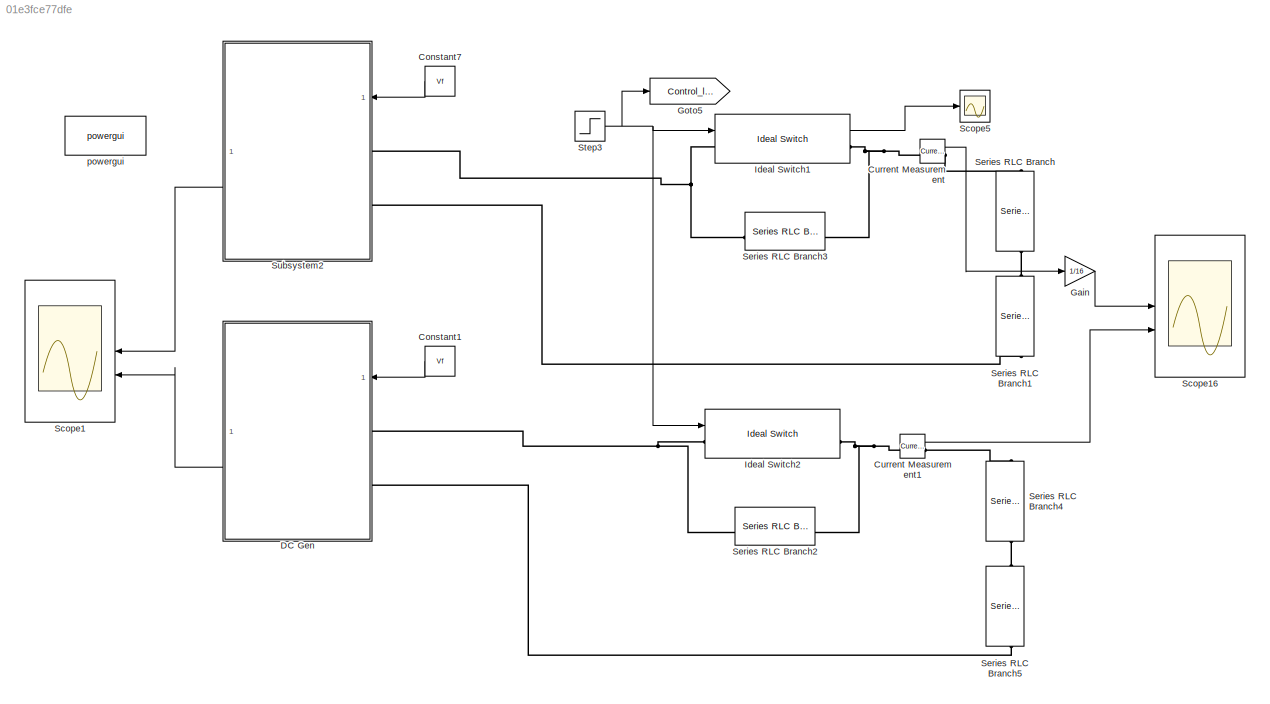
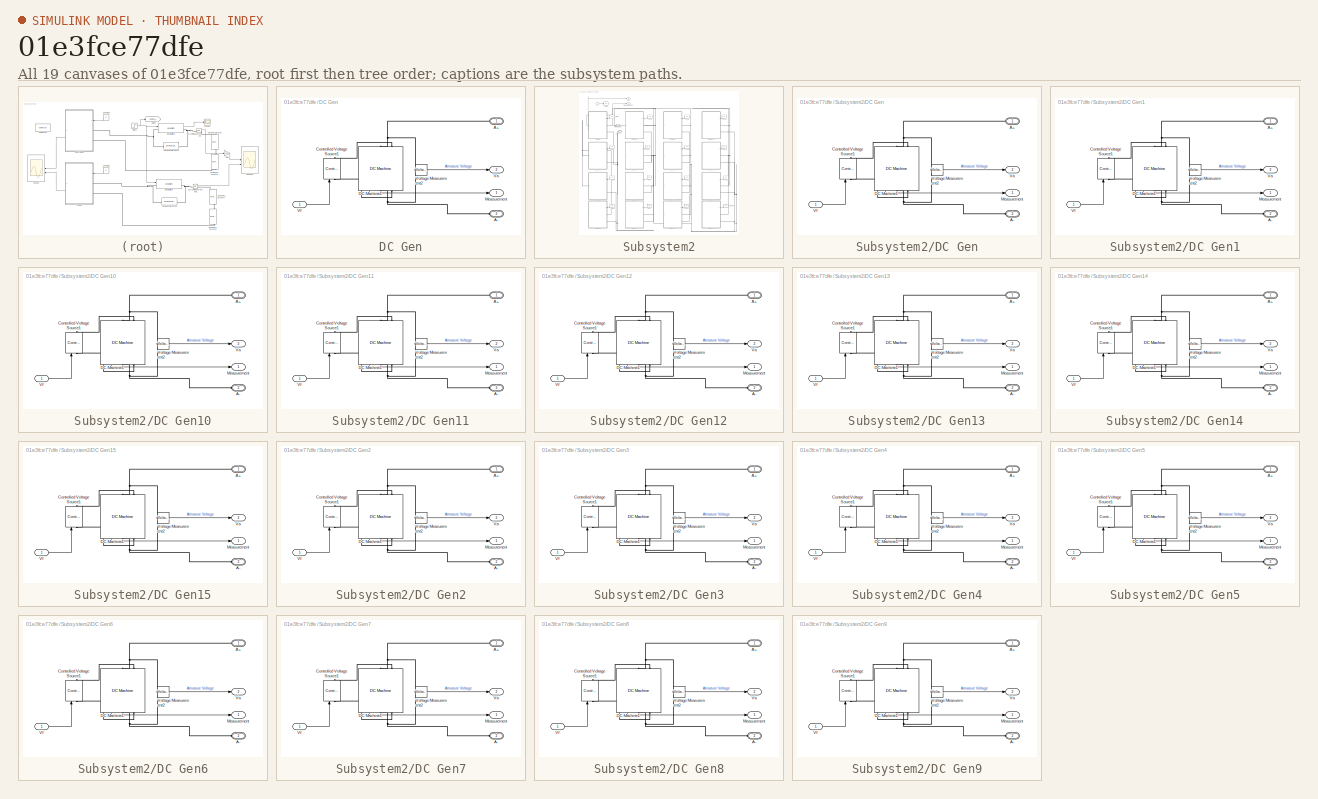
[diagram: thumbnail index - all 19 canvases of the model, root first then tree order]
MODEL slx_01e3fce77dfe
KIND model
CONFIG AbsTol = auto
CONFIG EnableMultiTasking = off
CONFIG FixedStep = auto
CONFIG MaxStep = auto
CONFIG MinStep = auto
CONFIG RelTol = 1e-3
CONFIG SampleTimeConstraint = Unconstrained
CONFIG SolverName = VariableStepAuto
CONFIG StartTime = 0.0
CONFIG StopTime = 10.0
BLOCK [Constant] Constant1
  NameLocation = top
  Value = Vf
BLOCK [Constant] Constant7
  NameLocation = top
  Value = Vf
BLOCK [Reference] Current Measurement  REF=spsCurrentMeasurementLib/Current Measurement
  LibrarySourceBlock = sps_lib/Sensors and Measurements/Current Measurement
  SourceBlock = spsCurrentMeasurementLib/Current Measurement
  SourceType = Current Measurement
  UserDataPersistent = on
BLOCK [Reference] Current Measurement1  REF=spsCurrentMeasurementLib/Current Measurement
  LibrarySourceBlock = sps_lib/Sensors and Measurements/Current Measurement
  SourceBlock = spsCurrentMeasurementLib/Current Measurement
  SourceType = Current Measurement
  UserDataPersistent = on
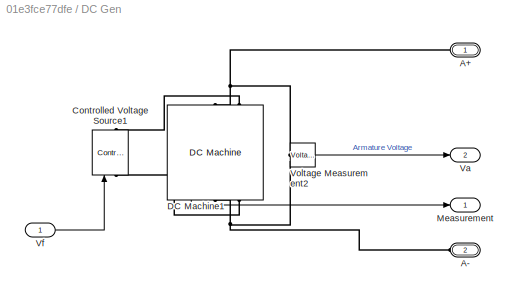
BLOCK [SubSystem] DC Gen
  NameLocation = top
BLOCK [PMIOPort] DC Gen/A+
  NameLocation = top
  Side = Left
BLOCK [PMIOPort] DC Gen/A-
  NameLocation = top
  Port = 2
  Side = Left
BLOCK [Reference] DC Gen/Controlled Voltage Source1  REF=spsControlledVoltageSourceLib/Controlled Voltage Source
  LibrarySourceBlock = sps_lib/Sources/Controlled Voltage Source
  NameLocation = right
  SourceBlock = spsControlledVoltageSourceLib/Controlled Voltage Source
  SourceType = Controlled Voltage Source
BLOCK [Reference] DC Gen/DC Machine1  REF=spsDCMachineLib/DC Machine
  LibrarySourceBlock = sps_lib/Electrical Machines/DC Machine
  NameLocation = left
  SourceBlock = spsDCMachineLib/DC Machine
  SourceType = DC machine
BLOCK [Outport] DC Gen/Measurement
BLOCK [Outport] DC Gen/Va
  Port = 2
BLOCK [Inport] DC Gen/Vf
BLOCK [Reference] DC Gen/Voltage Measurement2  REF=spsVoltageMeasurementLib/Voltage Measurement
  LibrarySourceBlock = sps_lib/Sensors and Measurements/Voltage Measurement
  SourceBlock = spsVoltageMeasurementLib/Voltage Measurement
  SourceType = Voltage Measurement
  UserDataPersistent = on
BLOCK [Gain] Gain
  Gain = 1/16
BLOCK [Goto] Goto5
  GotoTag = Control_load
BLOCK [Reference] Ideal Switch1  REF=spsIdealSwitchLib/Ideal Switch
  LibrarySourceBlock = sps_lib/Power Electronics/Ideal Switch
  SourceBlock = spsIdealSwitchLib/Ideal Switch
  SourceType = Ideal Switch
BLOCK [Reference] Ideal Switch2  REF=spsIdealSwitchLib/Ideal Switch
  LibrarySourceBlock = sps_lib/Power Electronics/Ideal Switch
  SourceBlock = spsIdealSwitchLib/Ideal Switch
  SourceType = Ideal Switch
BLOCK [Scope] Scope1
  Floating = off
  NameLocation = top
  NumInputPorts = 2
  ScopeSpecificationString = Simulink.scopes.TimeScopeBlockCfg('CurrentConfiguration', extmgr.ConfigurationSet(extmgr.Configuration('Core','General UI',true),extmgr.Configuration('Core','Source UI',true),extmgr.Configuration('Sources','WiredSimulink',true,'DataLoggingVariableName','ScopeData2'),extmgr.Configuration('Visuals','Time Domain',true,'SerializedDisplays',{struct('MinYLimReal','-138.95436','MaxYLimReal','1250.58927',...<+1525ch>
BLOCK [Scope] Scope16
  Floating = off
  NumInputPorts = 2
  ScopeSpecificationString = Simulink.scopes.TimeScopeBlockCfg('CurrentConfiguration', extmgr.ConfigurationSet(extmgr.Configuration('Core','General UI',true),extmgr.Configuration('Core','Source UI',true),extmgr.Configuration('Sources','WiredSimulink',true,'DataLoggingVariableName','ScopeData1'),extmgr.Configuration('Visuals','Time Domain',true,'SerializedDisplays',{struct('MinYLimReal','-2372.45294','MaxYLimReal','4063.29941'...<+1529ch>
BLOCK [Scope] Scope5
  Floating = off
  NumInputPorts = 1
  ScopeSpecificationString = Simulink.scopes.TimeScopeBlockCfg('CurrentConfiguration', extmgr.ConfigurationSet(extmgr.Configuration('Core','General UI',true),extmgr.Configuration('Core','Source UI',true),extmgr.Configuration('Sources','WiredSimulink',true),extmgr.Configuration('Visuals','Time Domain',true,'SerializedDisplays',{struct('MinYLimReal','-204.99354','MaxYLimReal','1844.94183','YLabelReal','','MinYLimMag',' 0.00000'...<+2097ch>
BLOCK [Reference] Series RLC Branch  REF=spsSeriesRLCBranchLib/Series RLC Branch
  LibrarySourceBlock = sps_lib/Passives/Series RLC Branch
  NameLocation = left
  SourceBlock = spsSeriesRLCBranchLib/Series RLC Branch
  SourceType = Series RLC Branch
BLOCK [Reference] Series RLC Branch1  REF=spsSeriesRLCBranchLib/Series RLC Branch
  LibrarySourceBlock = sps_lib/Passives/Series RLC Branch
  NameLocation = left
  SourceBlock = spsSeriesRLCBranchLib/Series RLC Branch
  SourceType = Series RLC Branch
BLOCK [Reference] Series RLC Branch2  REF=spsSeriesRLCBranchLib/Series RLC Branch
  LibrarySourceBlock = sps_lib/Passives/Series RLC Branch
  NameLocation = top
  SourceBlock = spsSeriesRLCBranchLib/Series RLC Branch
  SourceType = Series RLC Branch
BLOCK [Reference] Series RLC Branch3  REF=spsSeriesRLCBranchLib/Series RLC Branch
  LibrarySourceBlock = sps_lib/Passives/Series RLC Branch
  NameLocation = top
  SourceBlock = spsSeriesRLCBranchLib/Series RLC Branch
  SourceType = Series RLC Branch
BLOCK [Reference] Series RLC Branch4  REF=spsSeriesRLCBranchLib/Series RLC Branch
  LibrarySourceBlock = sps_lib/Passives/Series RLC Branch
  NameLocation = left
  SourceBlock = spsSeriesRLCBranchLib/Series RLC Branch
  SourceType = Series RLC Branch
BLOCK [Reference] Series RLC Branch5  REF=spsSeriesRLCBranchLib/Series RLC Branch
  LibrarySourceBlock = sps_lib/Passives/Series RLC Branch
  NameLocation = left
  SourceBlock = spsSeriesRLCBranchLib/Series RLC Branch
  SourceType = Series RLC Branch
BLOCK [Step] Step3
  SampleTime = 0
  Time = 5
  VectorParams1D = off
  ZeroCross = off
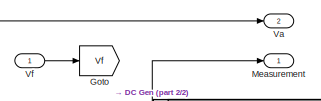
[diagram: Subsystem2 - part 1/2, top left region]
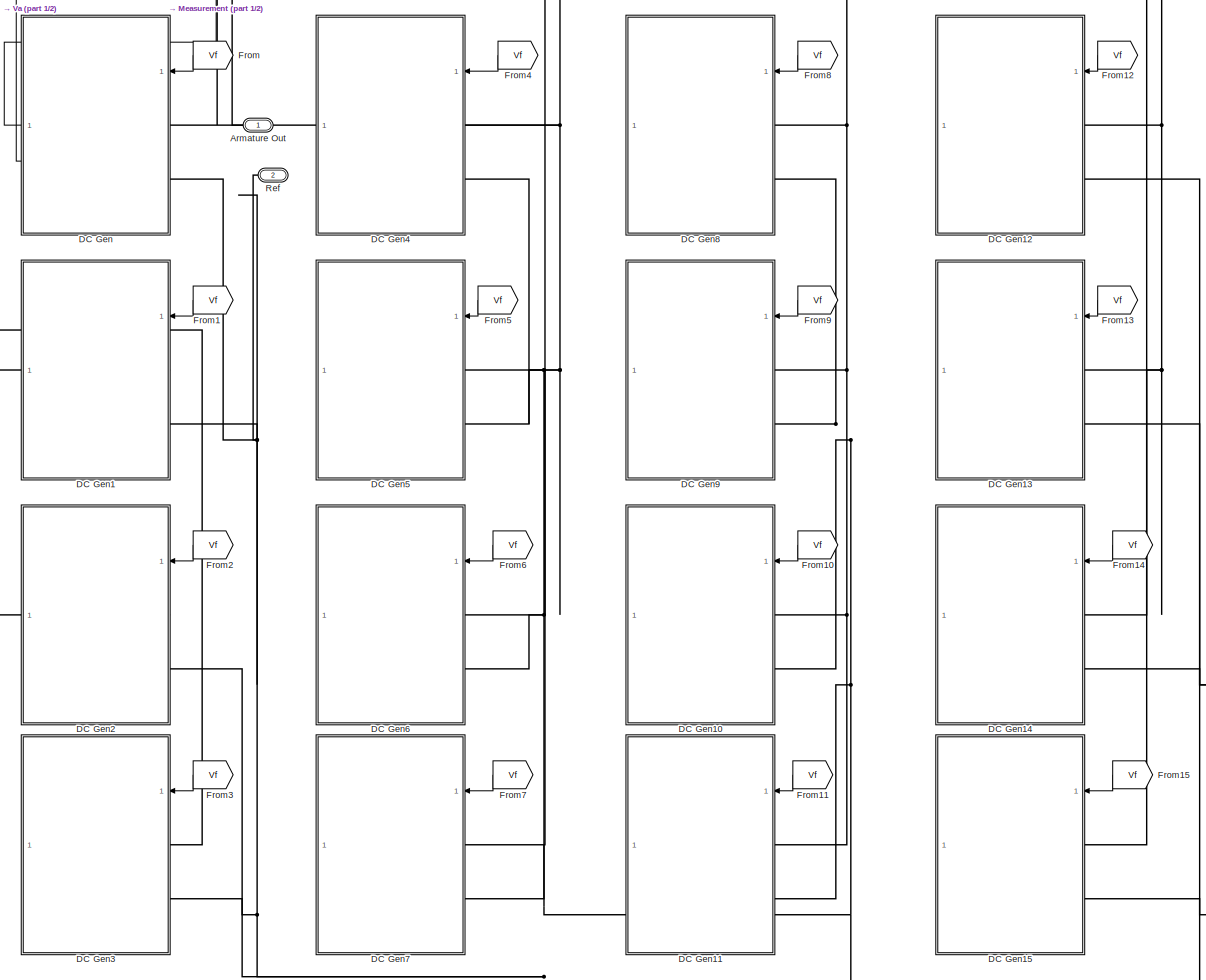
[diagram: Subsystem2 - part 2/2, most of the canvas]
BLOCK [SubSystem] Subsystem2
  NameLocation = top
BLOCK [PMIOPort] Subsystem2/Armature Out
  NameLocation = top
  Side = Left
BLOCK [SubSystem] Subsystem2/DC Gen
  NameLocation = top
BLOCK [PMIOPort] Subsystem2/DC Gen/A+
  NameLocation = top
  Side = Left
BLOCK [PMIOPort] Subsystem2/DC Gen/A-
  NameLocation = top
  Port = 2
  Side = Left
BLOCK [Reference] Subsystem2/DC Gen/Controlled Voltage Source1  REF=spsControlledVoltageSourceLib/Controlled Voltage Source
  LibrarySourceBlock = sps_lib/Sources/Controlled Voltage Source
  NameLocation = right
  SourceBlock = spsControlledVoltageSourceLib/Controlled Voltage Source
  SourceType = Controlled Voltage Source
BLOCK [Reference] Subsystem2/DC Gen/DC Machine1  REF=spsDCMachineLib/DC Machine
  LibrarySourceBlock = sps_lib/Electrical Machines/DC Machine
  NameLocation = left
  SourceBlock = spsDCMachineLib/DC Machine
  SourceType = DC machine
BLOCK [Outport] Subsystem2/DC Gen/Measurement
BLOCK [Outport] Subsystem2/DC Gen/Va
  Port = 2
BLOCK [Inport] Subsystem2/DC Gen/Vf
BLOCK [Reference] Subsystem2/DC Gen/Voltage Measurement2  REF=spsVoltageMeasurementLib/Voltage Measurement
  LibrarySourceBlock = sps_lib/Sensors and Measurements/Voltage Measurement
  SourceBlock = spsVoltageMeasurementLib/Voltage Measurement
  SourceType = Voltage Measurement
  UserDataPersistent = on
BLOCK [SubSystem] Subsystem2/DC Gen1
  NameLocation = top
BLOCK [PMIOPort] Subsystem2/DC Gen1/A+
  NameLocation = top
  Side = Left
BLOCK [PMIOPort] Subsystem2/DC Gen1/A-
  NameLocation = top
  Port = 2
  Side = Left
BLOCK [Reference] Subsystem2/DC Gen1/Controlled Voltage Source1  REF=spsControlledVoltageSourceLib/Controlled Voltage Source
  LibrarySourceBlock = sps_lib/Sources/Controlled Voltage Source
  NameLocation = right
  SourceBlock = spsControlledVoltageSourceLib/Controlled Voltage Source
  SourceType = Controlled Voltage Source
BLOCK [Reference] Subsystem2/DC Gen1/DC Machine1  REF=spsDCMachineLib/DC Machine
  LibrarySourceBlock = sps_lib/Electrical Machines/DC Machine
  NameLocation = left
  SourceBlock = spsDCMachineLib/DC Machine
  SourceType = DC machine
BLOCK [Outport] Subsystem2/DC Gen1/Measurement
BLOCK [Outport] Subsystem2/DC Gen1/Va
  Port = 2
BLOCK [Inport] Subsystem2/DC Gen1/Vf
BLOCK [Reference] Subsystem2/DC Gen1/Voltage Measurement2  REF=spsVoltageMeasurementLib/Voltage Measurement
  LibrarySourceBlock = sps_lib/Sensors and Measurements/Voltage Measurement
  SourceBlock = spsVoltageMeasurementLib/Voltage Measurement
  SourceType = Voltage Measurement
  UserDataPersistent = on
BLOCK [SubSystem] Subsystem2/DC Gen10
  NameLocation = top
BLOCK [PMIOPort] Subsystem2/DC Gen10/A+
  NameLocation = top
  Side = Left
BLOCK [PMIOPort] Subsystem2/DC Gen10/A-
  NameLocation = top
  Port = 2
  Side = Left
BLOCK [Reference] Subsystem2/DC Gen10/Controlled Voltage Source1  REF=spsControlledVoltageSourceLib/Controlled Voltage Source
  LibrarySourceBlock = sps_lib/Sources/Controlled Voltage Source
  NameLocation = right
  SourceBlock = spsControlledVoltageSourceLib/Controlled Voltage Source
  SourceType = Controlled Voltage Source
BLOCK [Reference] Subsystem2/DC Gen10/DC Machine1  REF=spsDCMachineLib/DC Machine
  LibrarySourceBlock = sps_lib/Electrical Machines/DC Machine
  NameLocation = left
  SourceBlock = spsDCMachineLib/DC Machine
  SourceType = DC machine
BLOCK [Outport] Subsystem2/DC Gen10/Measurement
BLOCK [Outport] Subsystem2/DC Gen10/Va
  Port = 2
BLOCK [Inport] Subsystem2/DC Gen10/Vf
BLOCK [Reference] Subsystem2/DC Gen10/Voltage Measurement2  REF=spsVoltageMeasurementLib/Voltage Measurement
  LibrarySourceBlock = sps_lib/Sensors and Measurements/Voltage Measurement
  SourceBlock = spsVoltageMeasurementLib/Voltage Measurement
  SourceType = Voltage Measurement
  UserDataPersistent = on
BLOCK [SubSystem] Subsystem2/DC Gen11
  NameLocation = top
BLOCK [PMIOPort] Subsystem2/DC Gen11/A+
  NameLocation = top
  Side = Left
BLOCK [PMIOPort] Subsystem2/DC Gen11/A-
  NameLocation = top
  Port = 2
  Side = Left
BLOCK [Reference] Subsystem2/DC Gen11/Controlled Voltage Source1  REF=spsControlledVoltageSourceLib/Controlled Voltage Source
  LibrarySourceBlock = sps_lib/Sources/Controlled Voltage Source
  NameLocation = right
  SourceBlock = spsControlledVoltageSourceLib/Controlled Voltage Source
  SourceType = Controlled Voltage Source
BLOCK [Reference] Subsystem2/DC Gen11/DC Machine1  REF=spsDCMachineLib/DC Machine
  LibrarySourceBlock = sps_lib/Electrical Machines/DC Machine
  NameLocation = left
  SourceBlock = spsDCMachineLib/DC Machine
  SourceType = DC machine
BLOCK [Outport] Subsystem2/DC Gen11/Measurement
BLOCK [Outport] Subsystem2/DC Gen11/Va
  Port = 2
BLOCK [Inport] Subsystem2/DC Gen11/Vf
BLOCK [Reference] Subsystem2/DC Gen11/Voltage Measurement2  REF=spsVoltageMeasurementLib/Voltage Measurement
  LibrarySourceBlock = sps_lib/Sensors and Measurements/Voltage Measurement
  SourceBlock = spsVoltageMeasurementLib/Voltage Measurement
  SourceType = Voltage Measurement
  UserDataPersistent = on
BLOCK [SubSystem] Subsystem2/DC Gen12
  NameLocation = top
BLOCK [PMIOPort] Subsystem2/DC Gen12/A+
  NameLocation = top
  Side = Left
BLOCK [PMIOPort] Subsystem2/DC Gen12/A-
  NameLocation = top
  Port = 2
  Side = Left
BLOCK [Reference] Subsystem2/DC Gen12/Controlled Voltage Source1  REF=spsControlledVoltageSourceLib/Controlled Voltage Source
  LibrarySourceBlock = sps_lib/Sources/Controlled Voltage Source
  NameLocation = right
  SourceBlock = spsControlledVoltageSourceLib/Controlled Voltage Source
  SourceType = Controlled Voltage Source
BLOCK [Reference] Subsystem2/DC Gen12/DC Machine1  REF=spsDCMachineLib/DC Machine
  LibrarySourceBlock = sps_lib/Electrical Machines/DC Machine
  NameLocation = left
  SourceBlock = spsDCMachineLib/DC Machine
  SourceType = DC machine
BLOCK [Outport] Subsystem2/DC Gen12/Measurement
BLOCK [Outport] Subsystem2/DC Gen12/Va
  Port = 2
BLOCK [Inport] Subsystem2/DC Gen12/Vf
BLOCK [Reference] Subsystem2/DC Gen12/Voltage Measurement2  REF=spsVoltageMeasurementLib/Voltage Measurement
  LibrarySourceBlock = sps_lib/Sensors and Measurements/Voltage Measurement
  SourceBlock = spsVoltageMeasurementLib/Voltage Measurement
  SourceType = Voltage Measurement
  UserDataPersistent = on
BLOCK [SubSystem] Subsystem2/DC Gen13
  NameLocation = top
BLOCK [PMIOPort] Subsystem2/DC Gen13/A+
  NameLocation = top
  Side = Left
BLOCK [PMIOPort] Subsystem2/DC Gen13/A-
  NameLocation = top
  Port = 2
  Side = Left
BLOCK [Reference] Subsystem2/DC Gen13/Controlled Voltage Source1  REF=spsControlledVoltageSourceLib/Controlled Voltage Source
  LibrarySourceBlock = sps_lib/Sources/Controlled Voltage Source
  NameLocation = right
  SourceBlock = spsControlledVoltageSourceLib/Controlled Voltage Source
  SourceType = Controlled Voltage Source
BLOCK [Reference] Subsystem2/DC Gen13/DC Machine1  REF=spsDCMachineLib/DC Machine
  LibrarySourceBlock = sps_lib/Electrical Machines/DC Machine
  NameLocation = left
  SourceBlock = spsDCMachineLib/DC Machine
  SourceType = DC machine
BLOCK [Outport] Subsystem2/DC Gen13/Measurement
BLOCK [Outport] Subsystem2/DC Gen13/Va
  Port = 2
BLOCK [Inport] Subsystem2/DC Gen13/Vf
BLOCK [Reference] Subsystem2/DC Gen13/Voltage Measurement2  REF=spsVoltageMeasurementLib/Voltage Measurement
  LibrarySourceBlock = sps_lib/Sensors and Measurements/Voltage Measurement
  SourceBlock = spsVoltageMeasurementLib/Voltage Measurement
  SourceType = Voltage Measurement
  UserDataPersistent = on
BLOCK [SubSystem] Subsystem2/DC Gen14
  NameLocation = top
BLOCK [PMIOPort] Subsystem2/DC Gen14/A+
  NameLocation = top
  Side = Left
BLOCK [PMIOPort] Subsystem2/DC Gen14/A-
  NameLocation = top
  Port = 2
  Side = Left
BLOCK [Reference] Subsystem2/DC Gen14/Controlled Voltage Source1  REF=spsControlledVoltageSourceLib/Controlled Voltage Source
  LibrarySourceBlock = sps_lib/Sources/Controlled Voltage Source
  NameLocation = right
  SourceBlock = spsControlledVoltageSourceLib/Controlled Voltage Source
  SourceType = Controlled Voltage Source
BLOCK [Reference] Subsystem2/DC Gen14/DC Machine1  REF=spsDCMachineLib/DC Machine
  LibrarySourceBlock = sps_lib/Electrical Machines/DC Machine
  NameLocation = left
  SourceBlock = spsDCMachineLib/DC Machine
  SourceType = DC machine
BLOCK [Outport] Subsystem2/DC Gen14/Measurement
BLOCK [Outport] Subsystem2/DC Gen14/Va
  Port = 2
BLOCK [Inport] Subsystem2/DC Gen14/Vf
BLOCK [Reference] Subsystem2/DC Gen14/Voltage Measurement2  REF=spsVoltageMeasurementLib/Voltage Measurement
  LibrarySourceBlock = sps_lib/Sensors and Measurements/Voltage Measurement
  SourceBlock = spsVoltageMeasurementLib/Voltage Measurement
  SourceType = Voltage Measurement
  UserDataPersistent = on
BLOCK [SubSystem] Subsystem2/DC Gen15
  NameLocation = top
BLOCK [PMIOPort] Subsystem2/DC Gen15/A+
  NameLocation = top
  Side = Left
BLOCK [PMIOPort] Subsystem2/DC Gen15/A-
  NameLocation = top
  Port = 2
  Side = Left
BLOCK [Reference] Subsystem2/DC Gen15/Controlled Voltage Source1  REF=spsControlledVoltageSourceLib/Controlled Voltage Source
  LibrarySourceBlock = sps_lib/Sources/Controlled Voltage Source
  NameLocation = right
  SourceBlock = spsControlledVoltageSourceLib/Controlled Voltage Source
  SourceType = Controlled Voltage Source
BLOCK [Reference] Subsystem2/DC Gen15/DC Machine1  REF=spsDCMachineLib/DC Machine
  LibrarySourceBlock = sps_lib/Electrical Machines/DC Machine
  NameLocation = left
  SourceBlock = spsDCMachineLib/DC Machine
  SourceType = DC machine
BLOCK [Outport] Subsystem2/DC Gen15/Measurement
BLOCK [Outport] Subsystem2/DC Gen15/Va
  Port = 2
BLOCK [Inport] Subsystem2/DC Gen15/Vf
BLOCK [Reference] Subsystem2/DC Gen15/Voltage Measurement2  REF=spsVoltageMeasurementLib/Voltage Measurement
  LibrarySourceBlock = sps_lib/Sensors and Measurements/Voltage Measurement
  SourceBlock = spsVoltageMeasurementLib/Voltage Measurement
  SourceType = Voltage Measurement
  UserDataPersistent = on
BLOCK [SubSystem] Subsystem2/DC Gen2
  NameLocation = top
BLOCK [PMIOPort] Subsystem2/DC Gen2/A+
  NameLocation = top
  Side = Left
BLOCK [PMIOPort] Subsystem2/DC Gen2/A-
  NameLocation = top
  Port = 2
  Side = Left
BLOCK [Reference] Subsystem2/DC Gen2/Controlled Voltage Source1  REF=spsControlledVoltageSourceLib/Controlled Voltage Source
  LibrarySourceBlock = sps_lib/Sources/Controlled Voltage Source
  NameLocation = right
  SourceBlock = spsControlledVoltageSourceLib/Controlled Voltage Source
  SourceType = Controlled Voltage Source
BLOCK [Reference] Subsystem2/DC Gen2/DC Machine1  REF=spsDCMachineLib/DC Machine
  LibrarySourceBlock = sps_lib/Electrical Machines/DC Machine
  NameLocation = left
  SourceBlock = spsDCMachineLib/DC Machine
  SourceType = DC machine
BLOCK [Outport] Subsystem2/DC Gen2/Measurement
BLOCK [Outport] Subsystem2/DC Gen2/Va
  Port = 2
BLOCK [Inport] Subsystem2/DC Gen2/Vf
BLOCK [Reference] Subsystem2/DC Gen2/Voltage Measurement2  REF=spsVoltageMeasurementLib/Voltage Measurement
  LibrarySourceBlock = sps_lib/Sensors and Measurements/Voltage Measurement
  SourceBlock = spsVoltageMeasurementLib/Voltage Measurement
  SourceType = Voltage Measurement
  UserDataPersistent = on
BLOCK [SubSystem] Subsystem2/DC Gen3
  NameLocation = top
BLOCK [PMIOPort] Subsystem2/DC Gen3/A+
  NameLocation = top
  Side = Left
BLOCK [PMIOPort] Subsystem2/DC Gen3/A-
  NameLocation = top
  Port = 2
  Side = Left
BLOCK [Reference] Subsystem2/DC Gen3/Controlled Voltage Source1  REF=spsControlledVoltageSourceLib/Controlled Voltage Source
  LibrarySourceBlock = sps_lib/Sources/Controlled Voltage Source
  NameLocation = right
  SourceBlock = spsControlledVoltageSourceLib/Controlled Voltage Source
  SourceType = Controlled Voltage Source
BLOCK [Reference] Subsystem2/DC Gen3/DC Machine1  REF=spsDCMachineLib/DC Machine
  LibrarySourceBlock = sps_lib/Electrical Machines/DC Machine
  NameLocation = left
  SourceBlock = spsDCMachineLib/DC Machine
  SourceType = DC machine
BLOCK [Outport] Subsystem2/DC Gen3/Measurement
BLOCK [Outport] Subsystem2/DC Gen3/Va
  Port = 2
BLOCK [Inport] Subsystem2/DC Gen3/Vf
BLOCK [Reference] Subsystem2/DC Gen3/Voltage Measurement2  REF=spsVoltageMeasurementLib/Voltage Measurement
  LibrarySourceBlock = sps_lib/Sensors and Measurements/Voltage Measurement
  SourceBlock = spsVoltageMeasurementLib/Voltage Measurement
  SourceType = Voltage Measurement
  UserDataPersistent = on
BLOCK [SubSystem] Subsystem2/DC Gen4
  NameLocation = top
BLOCK [PMIOPort] Subsystem2/DC Gen4/A+
  NameLocation = top
  Side = Left
BLOCK [PMIOPort] Subsystem2/DC Gen4/A-
  NameLocation = top
  Port = 2
  Side = Left
BLOCK [Reference] Subsystem2/DC Gen4/Controlled Voltage Source1  REF=spsControlledVoltageSourceLib/Controlled Voltage Source
  LibrarySourceBlock = sps_lib/Sources/Controlled Voltage Source
  NameLocation = right
  SourceBlock = spsControlledVoltageSourceLib/Controlled Voltage Source
  SourceType = Controlled Voltage Source
BLOCK [Reference] Subsystem2/DC Gen4/DC Machine1  REF=spsDCMachineLib/DC Machine
  LibrarySourceBlock = sps_lib/Electrical Machines/DC Machine
  NameLocation = left
  SourceBlock = spsDCMachineLib/DC Machine
  SourceType = DC machine
BLOCK [Outport] Subsystem2/DC Gen4/Measurement
BLOCK [Outport] Subsystem2/DC Gen4/Va
  Port = 2
BLOCK [Inport] Subsystem2/DC Gen4/Vf
BLOCK [Reference] Subsystem2/DC Gen4/Voltage Measurement2  REF=spsVoltageMeasurementLib/Voltage Measurement
  LibrarySourceBlock = sps_lib/Sensors and Measurements/Voltage Measurement
  SourceBlock = spsVoltageMeasurementLib/Voltage Measurement
  SourceType = Voltage Measurement
  UserDataPersistent = on
BLOCK [SubSystem] Subsystem2/DC Gen5
  NameLocation = top
BLOCK [PMIOPort] Subsystem2/DC Gen5/A+
  NameLocation = top
  Side = Left
BLOCK [PMIOPort] Subsystem2/DC Gen5/A-
  NameLocation = top
  Port = 2
  Side = Left
BLOCK [Reference] Subsystem2/DC Gen5/Controlled Voltage Source1  REF=spsControlledVoltageSourceLib/Controlled Voltage Source
  LibrarySourceBlock = sps_lib/Sources/Controlled Voltage Source
  NameLocation = right
  SourceBlock = spsControlledVoltageSourceLib/Controlled Voltage Source
  SourceType = Controlled Voltage Source
BLOCK [Reference] Subsystem2/DC Gen5/DC Machine1  REF=spsDCMachineLib/DC Machine
  LibrarySourceBlock = sps_lib/Electrical Machines/DC Machine
  NameLocation = left
  SourceBlock = spsDCMachineLib/DC Machine
  SourceType = DC machine
BLOCK [Outport] Subsystem2/DC Gen5/Measurement
BLOCK [Outport] Subsystem2/DC Gen5/Va
  Port = 2
BLOCK [Inport] Subsystem2/DC Gen5/Vf
BLOCK [Reference] Subsystem2/DC Gen5/Voltage Measurement2  REF=spsVoltageMeasurementLib/Voltage Measurement
  LibrarySourceBlock = sps_lib/Sensors and Measurements/Voltage Measurement
  SourceBlock = spsVoltageMeasurementLib/Voltage Measurement
  SourceType = Voltage Measurement
  UserDataPersistent = on
BLOCK [SubSystem] Subsystem2/DC Gen6
  NameLocation = top
BLOCK [PMIOPort] Subsystem2/DC Gen6/A+
  NameLocation = top
  Side = Left
BLOCK [PMIOPort] Subsystem2/DC Gen6/A-
  NameLocation = top
  Port = 2
  Side = Left
BLOCK [Reference] Subsystem2/DC Gen6/Controlled Voltage Source1  REF=spsControlledVoltageSourceLib/Controlled Voltage Source
  LibrarySourceBlock = sps_lib/Sources/Controlled Voltage Source
  NameLocation = right
  SourceBlock = spsControlledVoltageSourceLib/Controlled Voltage Source
  SourceType = Controlled Voltage Source
BLOCK [Reference] Subsystem2/DC Gen6/DC Machine1  REF=spsDCMachineLib/DC Machine
  LibrarySourceBlock = sps_lib/Electrical Machines/DC Machine
  NameLocation = left
  SourceBlock = spsDCMachineLib/DC Machine
  SourceType = DC machine
BLOCK [Outport] Subsystem2/DC Gen6/Measurement
BLOCK [Outport] Subsystem2/DC Gen6/Va
  Port = 2
BLOCK [Inport] Subsystem2/DC Gen6/Vf
BLOCK [Reference] Subsystem2/DC Gen6/Voltage Measurement2  REF=spsVoltageMeasurementLib/Voltage Measurement
  LibrarySourceBlock = sps_lib/Sensors and Measurements/Voltage Measurement
  SourceBlock = spsVoltageMeasurementLib/Voltage Measurement
  SourceType = Voltage Measurement
  UserDataPersistent = on
BLOCK [SubSystem] Subsystem2/DC Gen7
  NameLocation = top
BLOCK [PMIOPort] Subsystem2/DC Gen7/A+
  NameLocation = top
  Side = Left
BLOCK [PMIOPort] Subsystem2/DC Gen7/A-
  NameLocation = top
  Port = 2
  Side = Left
BLOCK [Reference] Subsystem2/DC Gen7/Controlled Voltage Source1  REF=spsControlledVoltageSourceLib/Controlled Voltage Source
  LibrarySourceBlock = sps_lib/Sources/Controlled Voltage Source
  NameLocation = right
  SourceBlock = spsControlledVoltageSourceLib/Controlled Voltage Source
  SourceType = Controlled Voltage Source
BLOCK [Reference] Subsystem2/DC Gen7/DC Machine1  REF=spsDCMachineLib/DC Machine
  LibrarySourceBlock = sps_lib/Electrical Machines/DC Machine
  NameLocation = left
  SourceBlock = spsDCMachineLib/DC Machine
  SourceType = DC machine
BLOCK [Outport] Subsystem2/DC Gen7/Measurement
BLOCK [Outport] Subsystem2/DC Gen7/Va
  Port = 2
BLOCK [Inport] Subsystem2/DC Gen7/Vf
BLOCK [Reference] Subsystem2/DC Gen7/Voltage Measurement2  REF=spsVoltageMeasurementLib/Voltage Measurement
  LibrarySourceBlock = sps_lib/Sensors and Measurements/Voltage Measurement
  SourceBlock = spsVoltageMeasurementLib/Voltage Measurement
  SourceType = Voltage Measurement
  UserDataPersistent = on
BLOCK [SubSystem] Subsystem2/DC Gen8
  NameLocation = top
BLOCK [PMIOPort] Subsystem2/DC Gen8/A+
  NameLocation = top
  Side = Left
BLOCK [PMIOPort] Subsystem2/DC Gen8/A-
  NameLocation = top
  Port = 2
  Side = Left
BLOCK [Reference] Subsystem2/DC Gen8/Controlled Voltage Source1  REF=spsControlledVoltageSourceLib/Controlled Voltage Source
  LibrarySourceBlock = sps_lib/Sources/Controlled Voltage Source
  NameLocation = right
  SourceBlock = spsControlledVoltageSourceLib/Controlled Voltage Source
  SourceType = Controlled Voltage Source
BLOCK [Reference] Subsystem2/DC Gen8/DC Machine1  REF=spsDCMachineLib/DC Machine
  LibrarySourceBlock = sps_lib/Electrical Machines/DC Machine
  NameLocation = left
  SourceBlock = spsDCMachineLib/DC Machine
  SourceType = DC machine
BLOCK [Outport] Subsystem2/DC Gen8/Measurement
BLOCK [Outport] Subsystem2/DC Gen8/Va
  Port = 2
BLOCK [Inport] Subsystem2/DC Gen8/Vf
BLOCK [Reference] Subsystem2/DC Gen8/Voltage Measurement2  REF=spsVoltageMeasurementLib/Voltage Measurement
  LibrarySourceBlock = sps_lib/Sensors and Measurements/Voltage Measurement
  SourceBlock = spsVoltageMeasurementLib/Voltage Measurement
  SourceType = Voltage Measurement
  UserDataPersistent = on
BLOCK [SubSystem] Subsystem2/DC Gen9
  NameLocation = top
BLOCK [PMIOPort] Subsystem2/DC Gen9/A+
  NameLocation = top
  Side = Left
BLOCK [PMIOPort] Subsystem2/DC Gen9/A-
  NameLocation = top
  Port = 2
  Side = Left
BLOCK [Reference] Subsystem2/DC Gen9/Controlled Voltage Source1  REF=spsControlledVoltageSourceLib/Controlled Voltage Source
  LibrarySourceBlock = sps_lib/Sources/Controlled Voltage Source
  NameLocation = right
  SourceBlock = spsControlledVoltageSourceLib/Controlled Voltage Source
  SourceType = Controlled Voltage Source
BLOCK [Reference] Subsystem2/DC Gen9/DC Machine1  REF=spsDCMachineLib/DC Machine
  LibrarySourceBlock = sps_lib/Electrical Machines/DC Machine
  NameLocation = left
  SourceBlock = spsDCMachineLib/DC Machine
  SourceType = DC machine
BLOCK [Outport] Subsystem2/DC Gen9/Measurement
BLOCK [Outport] Subsystem2/DC Gen9/Va
  Port = 2
BLOCK [Inport] Subsystem2/DC Gen9/Vf
BLOCK [Reference] Subsystem2/DC Gen9/Voltage Measurement2  REF=spsVoltageMeasurementLib/Voltage Measurement
  LibrarySourceBlock = sps_lib/Sensors and Measurements/Voltage Measurement
  SourceBlock = spsVoltageMeasurementLib/Voltage Measurement
  SourceType = Voltage Measurement
  UserDataPersistent = on
BLOCK [From] Subsystem2/From
  GotoTag = Vf
  NameLocation = top
BLOCK [From] Subsystem2/From1
  GotoTag = Vf
  NameLocation = top
BLOCK [From] Subsystem2/From10
  GotoTag = Vf
  NameLocation = top
BLOCK [From] Subsystem2/From11
  GotoTag = Vf
  NameLocation = top
BLOCK [From] Subsystem2/From12
  GotoTag = Vf
  NameLocation = top
BLOCK [From] Subsystem2/From13
  GotoTag = Vf
  NameLocation = top
BLOCK [From] Subsystem2/From14
  GotoTag = Vf
  NameLocation = top
BLOCK [From] Subsystem2/From15
  GotoTag = Vf
  NameLocation = top
BLOCK [From] Subsystem2/From2
  GotoTag = Vf
  NameLocation = top
BLOCK [From] Subsystem2/From3
  GotoTag = Vf
  NameLocation = top
BLOCK [From] Subsystem2/From4
  GotoTag = Vf
  NameLocation = top
BLOCK [From] Subsystem2/From5
  GotoTag = Vf
  NameLocation = top
BLOCK [From] Subsystem2/From6
  GotoTag = Vf
  NameLocation = top
BLOCK [From] Subsystem2/From7
  GotoTag = Vf
  NameLocation = top
BLOCK [From] Subsystem2/From8
  GotoTag = Vf
  NameLocation = top
BLOCK [From] Subsystem2/From9
  GotoTag = Vf
  NameLocation = top
BLOCK [Goto] Subsystem2/Goto
  GotoTag = Vf
BLOCK [Outport] Subsystem2/Measurement
BLOCK [PMIOPort] Subsystem2/Ref
  NameLocation = top
  Port = 2
  Side = Left
BLOCK [Outport] Subsystem2/Va
  Port = 2
BLOCK [Inport] Subsystem2/Vf
BLOCK [Reference] powergui  REF=sps_lib/powergui
  LibrarySourceBlock = sps_lib/powergui
  Priority = 1
  SourceBlock = sps_lib/powergui
  SourceType = PSB option menu block
LINE Constant1:1 -> DC Gen:1
LINE Constant7:1 -> Subsystem2:1
LINE Current Measurement1:1 -> Scope16:2
LINE Current Measurement:1 -> Gain:1
LINE DC Gen/DC Machine1:1 -> DC Gen/Measurement:1
LINE DC Gen/Vf:1 -> DC Gen/Controlled Voltage Source1:1
LINE DC Gen/Voltage Measurement2:1 -> DC Gen/Va:1
LINE DC Gen:2 -> Scope1:2
LINE Gain:1 -> Scope16:1
LINE Ideal Switch1:1 -> Scope5:1
NET Step3:1 -> Goto5:1, Ideal Switch1:1, Ideal Switch2:1
LINE Subsystem2/DC Gen/DC Machine1:1 -> Subsystem2/DC Gen/Measurement:1
LINE Subsystem2/DC Gen/Vf:1 -> Subsystem2/DC Gen/Controlled Voltage Source1:1
LINE Subsystem2/DC Gen/Voltage Measurement2:1 -> Subsystem2/DC Gen/Va:1
LINE Subsystem2/DC Gen1/DC Machine1:1 -> Subsystem2/DC Gen1/Measurement:1
LINE Subsystem2/DC Gen1/Vf:1 -> Subsystem2/DC Gen1/Controlled Voltage Source1:1
LINE Subsystem2/DC Gen1/Voltage Measurement2:1 -> Subsystem2/DC Gen1/Va:1
LINE Subsystem2/DC Gen10/DC Machine1:1 -> Subsystem2/DC Gen10/Measurement:1
LINE Subsystem2/DC Gen10/Vf:1 -> Subsystem2/DC Gen10/Controlled Voltage Source1:1
LINE Subsystem2/DC Gen10/Voltage Measurement2:1 -> Subsystem2/DC Gen10/Va:1
LINE Subsystem2/DC Gen11/DC Machine1:1 -> Subsystem2/DC Gen11/Measurement:1
LINE Subsystem2/DC Gen11/Vf:1 -> Subsystem2/DC Gen11/Controlled Voltage Source1:1
LINE Subsystem2/DC Gen11/Voltage Measurement2:1 -> Subsystem2/DC Gen11/Va:1
LINE Subsystem2/DC Gen12/DC Machine1:1 -> Subsystem2/DC Gen12/Measurement:1
LINE Subsystem2/DC Gen12/Vf:1 -> Subsystem2/DC Gen12/Controlled Voltage Source1:1
LINE Subsystem2/DC Gen12/Voltage Measurement2:1 -> Subsystem2/DC Gen12/Va:1
LINE Subsystem2/DC Gen13/DC Machine1:1 -> Subsystem2/DC Gen13/Measurement:1
LINE Subsystem2/DC Gen13/Vf:1 -> Subsystem2/DC Gen13/Controlled Voltage Source1:1
LINE Subsystem2/DC Gen13/Voltage Measurement2:1 -> Subsystem2/DC Gen13/Va:1
LINE Subsystem2/DC Gen14/DC Machine1:1 -> Subsystem2/DC Gen14/Measurement:1
LINE Subsystem2/DC Gen14/Vf:1 -> Subsystem2/DC Gen14/Controlled Voltage Source1:1
LINE Subsystem2/DC Gen14/Voltage Measurement2:1 -> Subsystem2/DC Gen14/Va:1
LINE Subsystem2/DC Gen15/DC Machine1:1 -> Subsystem2/DC Gen15/Measurement:1
LINE Subsystem2/DC Gen15/Vf:1 -> Subsystem2/DC Gen15/Controlled Voltage Source1:1
LINE Subsystem2/DC Gen15/Voltage Measurement2:1 -> Subsystem2/DC Gen15/Va:1
LINE Subsystem2/DC Gen2/DC Machine1:1 -> Subsystem2/DC Gen2/Measurement:1
LINE Subsystem2/DC Gen2/Vf:1 -> Subsystem2/DC Gen2/Controlled Voltage Source1:1
LINE Subsystem2/DC Gen2/Voltage Measurement2:1 -> Subsystem2/DC Gen2/Va:1
LINE Subsystem2/DC Gen3/DC Machine1:1 -> Subsystem2/DC Gen3/Measurement:1
LINE Subsystem2/DC Gen3/Vf:1 -> Subsystem2/DC Gen3/Controlled Voltage Source1:1
LINE Subsystem2/DC Gen3/Voltage Measurement2:1 -> Subsystem2/DC Gen3/Va:1
LINE Subsystem2/DC Gen4/DC Machine1:1 -> Subsystem2/DC Gen4/Measurement:1
LINE Subsystem2/DC Gen4/Vf:1 -> Subsystem2/DC Gen4/Controlled Voltage Source1:1
LINE Subsystem2/DC Gen4/Voltage Measurement2:1 -> Subsystem2/DC Gen4/Va:1
LINE Subsystem2/DC Gen5/DC Machine1:1 -> Subsystem2/DC Gen5/Measurement:1
LINE Subsystem2/DC Gen5/Vf:1 -> Subsystem2/DC Gen5/Controlled Voltage Source1:1
LINE Subsystem2/DC Gen5/Voltage Measurement2:1 -> Subsystem2/DC Gen5/Va:1
LINE Subsystem2/DC Gen6/DC Machine1:1 -> Subsystem2/DC Gen6/Measurement:1
LINE Subsystem2/DC Gen6/Vf:1 -> Subsystem2/DC Gen6/Controlled Voltage Source1:1
LINE Subsystem2/DC Gen6/Voltage Measurement2:1 -> Subsystem2/DC Gen6/Va:1
LINE Subsystem2/DC Gen7/DC Machine1:1 -> Subsystem2/DC Gen7/Measurement:1
LINE Subsystem2/DC Gen7/Vf:1 -> Subsystem2/DC Gen7/Controlled Voltage Source1:1
LINE Subsystem2/DC Gen7/Voltage Measurement2:1 -> Subsystem2/DC Gen7/Va:1
LINE Subsystem2/DC Gen8/DC Machine1:1 -> Subsystem2/DC Gen8/Measurement:1
LINE Subsystem2/DC Gen8/Vf:1 -> Subsystem2/DC Gen8/Controlled Voltage Source1:1
LINE Subsystem2/DC Gen8/Voltage Measurement2:1 -> Subsystem2/DC Gen8/Va:1
LINE Subsystem2/DC Gen9/DC Machine1:1 -> Subsystem2/DC Gen9/Measurement:1
LINE Subsystem2/DC Gen9/Vf:1 -> Subsystem2/DC Gen9/Controlled Voltage Source1:1
LINE Subsystem2/DC Gen9/Voltage Measurement2:1 -> Subsystem2/DC Gen9/Va:1
LINE Subsystem2/DC Gen:1 -> Subsystem2/Measurement:1
LINE Subsystem2/DC Gen:2 -> Subsystem2/Va:1
LINE Subsystem2/From10:1 -> Subsystem2/DC Gen10:1
LINE Subsystem2/From11:1 -> Subsystem2/DC Gen11:1
LINE Subsystem2/From12:1 -> Subsystem2/DC Gen12:1
LINE Subsystem2/From13:1 -> Subsystem2/DC Gen13:1
LINE Subsystem2/From14:1 -> Subsystem2/DC Gen14:1
LINE Subsystem2/From15:1 -> Subsystem2/DC Gen15:1
LINE Subsystem2/From1:1 -> Subsystem2/DC Gen1:1
LINE Subsystem2/From2:1 -> Subsystem2/DC Gen2:1
LINE Subsystem2/From3:1 -> Subsystem2/DC Gen3:1
LINE Subsystem2/From4:1 -> Subsystem2/DC Gen4:1
LINE Subsystem2/From5:1 -> Subsystem2/DC Gen5:1
LINE Subsystem2/From6:1 -> Subsystem2/DC Gen6:1
LINE Subsystem2/From7:1 -> Subsystem2/DC Gen7:1
LINE Subsystem2/From8:1 -> Subsystem2/DC Gen8:1
LINE Subsystem2/From9:1 -> Subsystem2/DC Gen9:1
LINE Subsystem2/From:1 -> Subsystem2/DC Gen:1
LINE Subsystem2/Vf:1 -> Subsystem2/Goto:1
LINE Subsystem2:2 -> Scope1:1
PNET net1: Current Measurement1:LConn1 -- Ideal Switch2:RConn1 -- Series RLC Branch2:LConn1
PLINE Current Measurement1:RConn1 -- Series RLC Branch4:LConn1
PNET net2: Current Measurement:LConn1 -- Ideal Switch1:RConn1 -- Series RLC Branch3:LConn1
PLINE Current Measurement:RConn1 -- Series RLC Branch:LConn1
PNET net3: DC Gen/A+:RConn1 -- DC Gen/DC Machine1:LConn1 -- DC Gen/Voltage Measurement2:LConn1
PNET net4: DC Gen/A-:RConn1 -- DC Gen/DC Machine1:RConn1 -- DC Gen/Voltage Measurement2:LConn2
PLINE DC Gen/Controlled Voltage Source1:LConn1 -- DC Gen/DC Machine1:RConn2
PLINE DC Gen/Controlled Voltage Source1:RConn1 -- DC Gen/DC Machine1:LConn2
PNET net5: DC Gen:LConn1 -- Ideal Switch2:LConn1 -- Series RLC Branch2:RConn1
PLINE DC Gen:LConn2 -- Series RLC Branch5:RConn1
PNET net6: Ideal Switch1:LConn1 -- Series RLC Branch3:RConn1 -- Subsystem2:LConn1
PLINE Series RLC Branch1:LConn1 -- Series RLC Branch:RConn1
PLINE Series RLC Branch1:RConn1 -- Subsystem2:LConn2
PLINE Series RLC Branch4:RConn1 -- Series RLC Branch5:LConn1
PNET net7: Subsystem2/Armature Out:RConn1 -- Subsystem2/DC Gen10:LConn1 -- Subsystem2/DC Gen11:LConn1 -- Subsystem2/DC Gen12:LConn1 -- Subsystem2/DC Gen13:LConn1 -- Subsystem2/DC Gen14:LConn1 -- Subsystem2/DC Gen15:LConn1 -- Subsystem2/DC Gen1:LConn1 -- Subsystem2/DC Gen2:LConn1 -- Subsystem2/DC Gen3:LConn1 -- Subsystem2/DC Gen4:LConn1 -- Subsystem2/DC Gen5:LConn1 -- Subsystem2/DC Gen6:LConn1 -- Subsystem2/DC Gen7:LConn1 -- Subsystem2/DC Gen8:LConn1 -- Subsystem2/DC Gen9:LConn1 -- Subsystem2/DC Gen:LConn1
PNET net8: Subsystem2/DC Gen/A+:RConn1 -- Subsystem2/DC Gen/DC Machine1:LConn1 -- Subsystem2/DC Gen/Voltage Measurement2:LConn1
PNET net9: Subsystem2/DC Gen/A-:RConn1 -- Subsystem2/DC Gen/DC Machine1:RConn1 -- Subsystem2/DC Gen/Voltage Measurement2:LConn2
PLINE Subsystem2/DC Gen/Controlled Voltage Source1:LConn1 -- Subsystem2/DC Gen/DC Machine1:RConn2
PLINE Subsystem2/DC Gen/Controlled Voltage Source1:RConn1 -- Subsystem2/DC Gen/DC Machine1:LConn2
PNET net10: Subsystem2/DC Gen1/A+:RConn1 -- Subsystem2/DC Gen1/DC Machine1:LConn1 -- Subsystem2/DC Gen1/Voltage Measurement2:LConn1
PNET net11: Subsystem2/DC Gen1/A-:RConn1 -- Subsystem2/DC Gen1/DC Machine1:RConn1 -- Subsystem2/DC Gen1/Voltage Measurement2:LConn2
PLINE Subsystem2/DC Gen1/Controlled Voltage Source1:LConn1 -- Subsystem2/DC Gen1/DC Machine1:RConn2
PLINE Subsystem2/DC Gen1/Controlled Voltage Source1:RConn1 -- Subsystem2/DC Gen1/DC Machine1:LConn2
PNET net12: Subsystem2/DC Gen10/A+:RConn1 -- Subsystem2/DC Gen10/DC Machine1:LConn1 -- Subsystem2/DC Gen10/Voltage Measurement2:LConn1
PNET net13: Subsystem2/DC Gen10/A-:RConn1 -- Subsystem2/DC Gen10/DC Machine1:RConn1 -- Subsystem2/DC Gen10/Voltage Measurement2:LConn2
PLINE Subsystem2/DC Gen10/Controlled Voltage Source1:LConn1 -- Subsystem2/DC Gen10/DC Machine1:RConn2
PLINE Subsystem2/DC Gen10/Controlled Voltage Source1:RConn1 -- Subsystem2/DC Gen10/DC Machine1:LConn2
PNET net14: Subsystem2/DC Gen10:LConn2 -- Subsystem2/DC Gen11:LConn2 -- Subsystem2/DC Gen12:LConn2 -- Subsystem2/DC Gen13:LConn2 -- Subsystem2/DC Gen14:LConn2 -- Subsystem2/DC Gen15:LConn2 -- Subsystem2/DC Gen1:LConn2 -- Subsystem2/DC Gen2:LConn2 -- Subsystem2/DC Gen3:LConn2 -- Subsystem2/DC Gen4:LConn2 -- Subsystem2/DC Gen5:LConn2 -- Subsystem2/DC Gen6:LConn2 -- Subsystem2/DC Gen7:LConn2 -- Subsystem2/DC Gen8:LConn2 -- Subsystem2/DC Gen9:LConn2 -- Subsystem2/DC Gen:LConn2 -- Subsystem2/Ref:RConn1
PNET net15: Subsystem2/DC Gen11/A+:RConn1 -- Subsystem2/DC Gen11/DC Machine1:LConn1 -- Subsystem2/DC Gen11/Voltage Measurement2:LConn1
PNET net16: Subsystem2/DC Gen11/A-:RConn1 -- Subsystem2/DC Gen11/DC Machine1:RConn1 -- Subsystem2/DC Gen11/Voltage Measurement2:LConn2
PLINE Subsystem2/DC Gen11/Controlled Voltage Source1:LConn1 -- Subsystem2/DC Gen11/DC Machine1:RConn2
PLINE Subsystem2/DC Gen11/Controlled Voltage Source1:RConn1 -- Subsystem2/DC Gen11/DC Machine1:LConn2
PNET net17: Subsystem2/DC Gen12/A+:RConn1 -- Subsystem2/DC Gen12/DC Machine1:LConn1 -- Subsystem2/DC Gen12/Voltage Measurement2:LConn1
PNET net18: Subsystem2/DC Gen12/A-:RConn1 -- Subsystem2/DC Gen12/DC Machine1:RConn1 -- Subsystem2/DC Gen12/Voltage Measurement2:LConn2
PLINE Subsystem2/DC Gen12/Controlled Voltage Source1:LConn1 -- Subsystem2/DC Gen12/DC Machine1:RConn2
PLINE Subsystem2/DC Gen12/Controlled Voltage Source1:RConn1 -- Subsystem2/DC Gen12/DC Machine1:LConn2
PNET net19: Subsystem2/DC Gen13/A+:RConn1 -- Subsystem2/DC Gen13/DC Machine1:LConn1 -- Subsystem2/DC Gen13/Voltage Measurement2:LConn1
PNET net20: Subsystem2/DC Gen13/A-:RConn1 -- Subsystem2/DC Gen13/DC Machine1:RConn1 -- Subsystem2/DC Gen13/Voltage Measurement2:LConn2
PLINE Subsystem2/DC Gen13/Controlled Voltage Source1:LConn1 -- Subsystem2/DC Gen13/DC Machine1:RConn2
PLINE Subsystem2/DC Gen13/Controlled Voltage Source1:RConn1 -- Subsystem2/DC Gen13/DC Machine1:LConn2
PNET net21: Subsystem2/DC Gen14/A+:RConn1 -- Subsystem2/DC Gen14/DC Machine1:LConn1 -- Subsystem2/DC Gen14/Voltage Measurement2:LConn1
PNET net22: Subsystem2/DC Gen14/A-:RConn1 -- Subsystem2/DC Gen14/DC Machine1:RConn1 -- Subsystem2/DC Gen14/Voltage Measurement2:LConn2
PLINE Subsystem2/DC Gen14/Controlled Voltage Source1:LConn1 -- Subsystem2/DC Gen14/DC Machine1:RConn2
PLINE Subsystem2/DC Gen14/Controlled Voltage Source1:RConn1 -- Subsystem2/DC Gen14/DC Machine1:LConn2
PNET net23: Subsystem2/DC Gen15/A+:RConn1 -- Subsystem2/DC Gen15/DC Machine1:LConn1 -- Subsystem2/DC Gen15/Voltage Measurement2:LConn1
PNET net24: Subsystem2/DC Gen15/A-:RConn1 -- Subsystem2/DC Gen15/DC Machine1:RConn1 -- Subsystem2/DC Gen15/Voltage Measurement2:LConn2
PLINE Subsystem2/DC Gen15/Controlled Voltage Source1:LConn1 -- Subsystem2/DC Gen15/DC Machine1:RConn2
PLINE Subsystem2/DC Gen15/Controlled Voltage Source1:RConn1 -- Subsystem2/DC Gen15/DC Machine1:LConn2
PNET net25: Subsystem2/DC Gen2/A+:RConn1 -- Subsystem2/DC Gen2/DC Machine1:LConn1 -- Subsystem2/DC Gen2/Voltage Measurement2:LConn1
PNET net26: Subsystem2/DC Gen2/A-:RConn1 -- Subsystem2/DC Gen2/DC Machine1:RConn1 -- Subsystem2/DC Gen2/Voltage Measurement2:LConn2
PLINE Subsystem2/DC Gen2/Controlled Voltage Source1:LConn1 -- Subsystem2/DC Gen2/DC Machine1:RConn2
PLINE Subsystem2/DC Gen2/Controlled Voltage Source1:RConn1 -- Subsystem2/DC Gen2/DC Machine1:LConn2
PNET net27: Subsystem2/DC Gen3/A+:RConn1 -- Subsystem2/DC Gen3/DC Machine1:LConn1 -- Subsystem2/DC Gen3/Voltage Measurement2:LConn1
PNET net28: Subsystem2/DC Gen3/A-:RConn1 -- Subsystem2/DC Gen3/DC Machine1:RConn1 -- Subsystem2/DC Gen3/Voltage Measurement2:LConn2
PLINE Subsystem2/DC Gen3/Controlled Voltage Source1:LConn1 -- Subsystem2/DC Gen3/DC Machine1:RConn2
PLINE Subsystem2/DC Gen3/Controlled Voltage Source1:RConn1 -- Subsystem2/DC Gen3/DC Machine1:LConn2
PNET net29: Subsystem2/DC Gen4/A+:RConn1 -- Subsystem2/DC Gen4/DC Machine1:LConn1 -- Subsystem2/DC Gen4/Voltage Measurement2:LConn1
PNET net30: Subsystem2/DC Gen4/A-:RConn1 -- Subsystem2/DC Gen4/DC Machine1:RConn1 -- Subsystem2/DC Gen4/Voltage Measurement2:LConn2
PLINE Subsystem2/DC Gen4/Controlled Voltage Source1:LConn1 -- Subsystem2/DC Gen4/DC Machine1:RConn2
PLINE Subsystem2/DC Gen4/Controlled Voltage Source1:RConn1 -- Subsystem2/DC Gen4/DC Machine1:LConn2
PNET net31: Subsystem2/DC Gen5/A+:RConn1 -- Subsystem2/DC Gen5/DC Machine1:LConn1 -- Subsystem2/DC Gen5/Voltage Measurement2:LConn1
PNET net32: Subsystem2/DC Gen5/A-:RConn1 -- Subsystem2/DC Gen5/DC Machine1:RConn1 -- Subsystem2/DC Gen5/Voltage Measurement2:LConn2
PLINE Subsystem2/DC Gen5/Controlled Voltage Source1:LConn1 -- Subsystem2/DC Gen5/DC Machine1:RConn2
PLINE Subsystem2/DC Gen5/Controlled Voltage Source1:RConn1 -- Subsystem2/DC Gen5/DC Machine1:LConn2
PNET net33: Subsystem2/DC Gen6/A+:RConn1 -- Subsystem2/DC Gen6/DC Machine1:LConn1 -- Subsystem2/DC Gen6/Voltage Measurement2:LConn1
PNET net34: Subsystem2/DC Gen6/A-:RConn1 -- Subsystem2/DC Gen6/DC Machine1:RConn1 -- Subsystem2/DC Gen6/Voltage Measurement2:LConn2
PLINE Subsystem2/DC Gen6/Controlled Voltage Source1:LConn1 -- Subsystem2/DC Gen6/DC Machine1:RConn2
PLINE Subsystem2/DC Gen6/Controlled Voltage Source1:RConn1 -- Subsystem2/DC Gen6/DC Machine1:LConn2
PNET net35: Subsystem2/DC Gen7/A+:RConn1 -- Subsystem2/DC Gen7/DC Machine1:LConn1 -- Subsystem2/DC Gen7/Voltage Measurement2:LConn1
PNET net36: Subsystem2/DC Gen7/A-:RConn1 -- Subsystem2/DC Gen7/DC Machine1:RConn1 -- Subsystem2/DC Gen7/Voltage Measurement2:LConn2
PLINE Subsystem2/DC Gen7/Controlled Voltage Source1:LConn1 -- Subsystem2/DC Gen7/DC Machine1:RConn2
PLINE Subsystem2/DC Gen7/Controlled Voltage Source1:RConn1 -- Subsystem2/DC Gen7/DC Machine1:LConn2
PNET net37: Subsystem2/DC Gen8/A+:RConn1 -- Subsystem2/DC Gen8/DC Machine1:LConn1 -- Subsystem2/DC Gen8/Voltage Measurement2:LConn1
PNET net38: Subsystem2/DC Gen8/A-:RConn1 -- Subsystem2/DC Gen8/DC Machine1:RConn1 -- Subsystem2/DC Gen8/Voltage Measurement2:LConn2
PLINE Subsystem2/DC Gen8/Controlled Voltage Source1:LConn1 -- Subsystem2/DC Gen8/DC Machine1:RConn2
PLINE Subsystem2/DC Gen8/Controlled Voltage Source1:RConn1 -- Subsystem2/DC Gen8/DC Machine1:LConn2
PNET net39: Subsystem2/DC Gen9/A+:RConn1 -- Subsystem2/DC Gen9/DC Machine1:LConn1 -- Subsystem2/DC Gen9/Voltage Measurement2:LConn1
PNET net40: Subsystem2/DC Gen9/A-:RConn1 -- Subsystem2/DC Gen9/DC Machine1:RConn1 -- Subsystem2/DC Gen9/Voltage Measurement2:LConn2
PLINE Subsystem2/DC Gen9/Controlled Voltage Source1:LConn1 -- Subsystem2/DC Gen9/DC Machine1:RConn2
PLINE Subsystem2/DC Gen9/Controlled Voltage Source1:RConn1 -- Subsystem2/DC Gen9/DC Machine1:LConn2
note: NET lines group one-source signal fan-out (src -> all destinations, sorted); 1:1 wires keep LINE; PNET lines group multi-terminal physical nets as a canonical sorted terminal list (undirected conserving connections); 2-terminal nets keep the pairwise PLINE form
